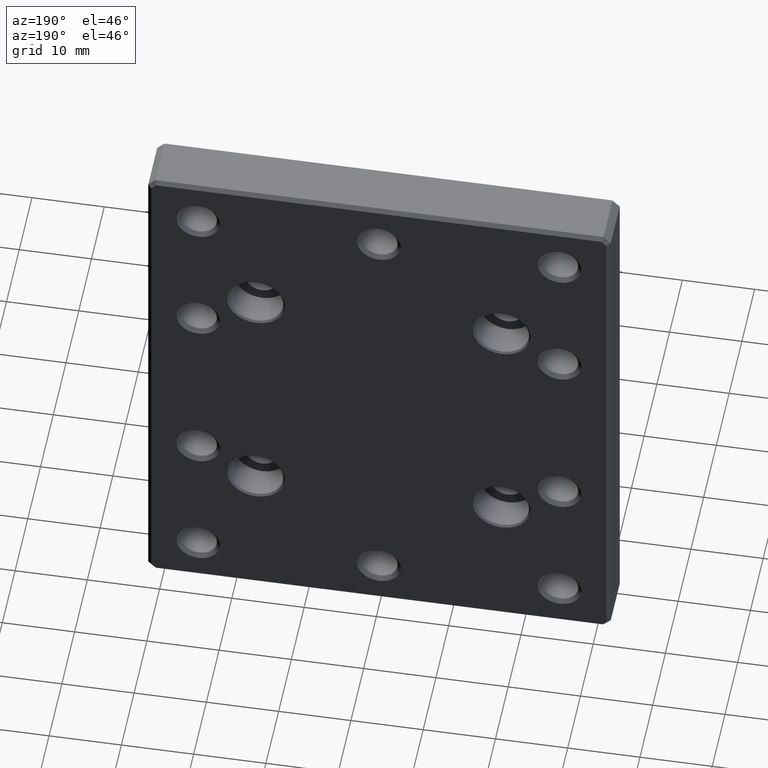
[diagram: clean part render]
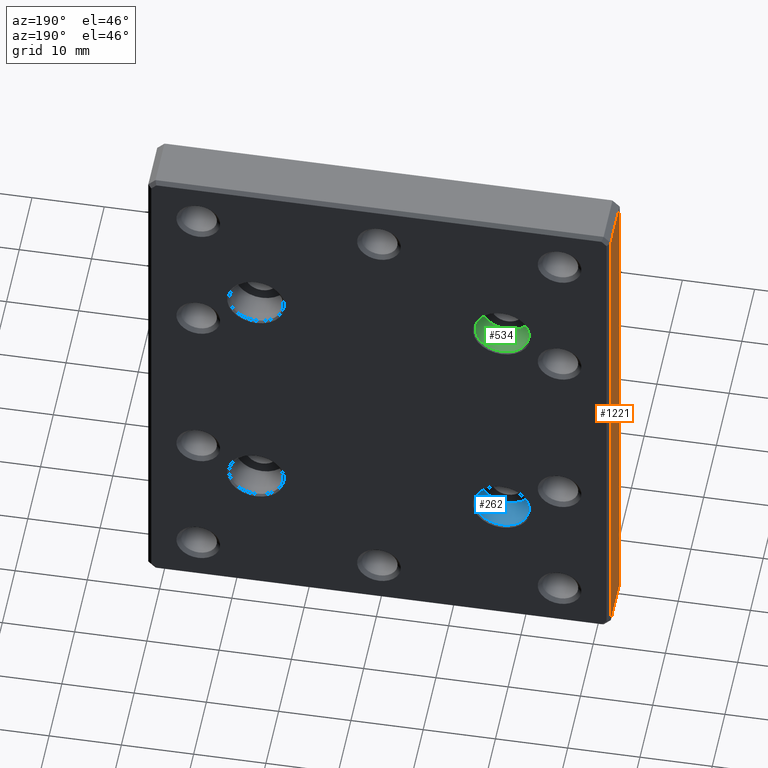
[diagram: same view with three faces highlighted in distinct colors, each labeled with its STEP entity id]
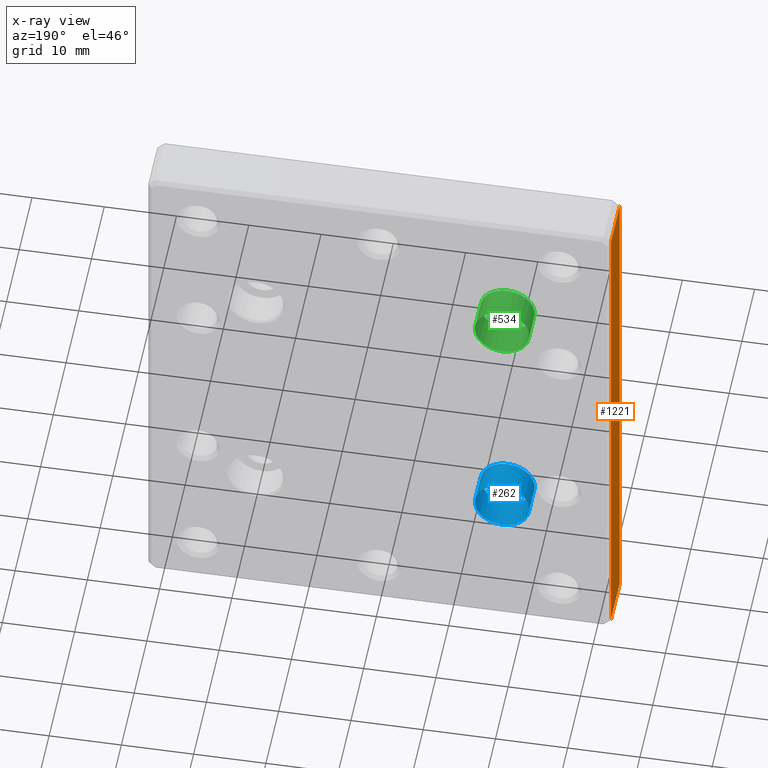
[diagram: x-ray of the same camera — body ghosted, the three highlighted faces saturated]
A machine part, auxiliary view with three faces highlighted in distinct colors.
The next image is the same camera in x-ray (body ghosted, the three faces saturated) — at least one of them is partly hidden behind the body in this view.
Their STEP definitions:

[orange] entity #1221 — the highlighted planar face has unit normal (1, 0, -0).
#29 = CARTESIAN_POINT ( 'NONE',  ( -32.00000000000001421, 8.000000000000000000, -38.00000000000000711 ) ) ;
#61 = LINE ( 'NONE', #1141, #453 ) ;
#62 = CARTESIAN_POINT ( 'NONE',  ( -32.00000000000000711, 0.5000000000000004441, 36.99999999999997868 ) ) ;
#74 = VERTEX_POINT ( 'NONE', #1002 ) ;
#133 = VERTEX_POINT ( 'NONE', #62 ) ;
#180 = CARTESIAN_POINT ( 'NONE',  ( -32.00000000000001421, 0.5000000000000004441, -38.00000000000000711 ) ) ;
#206 = ORIENTED_EDGE ( 'NONE', *, *, #1531, .T. ) ;
#228 = CARTESIAN_POINT ( 'NONE',  ( -32.00000000000000711, 8.000000000000000000, 36.99999999999997868 ) ) ;
#273 = PLANE ( 'NONE',  #1305 ) ;
#453 = VECTOR ( 'NONE', #1232, 1000.000000000000000 ) ;
#542 = DIRECTION ( 'NONE',  ( 1.000000000000000000, 0.000000000000000000, -9.130123557772669567E-17 ) ) ;
#552 = VECTOR ( 'NONE', #1161, 1000.000000000000000 ) ;
#586 = ORIENTED_EDGE ( 'NONE', *, *, #1467, .T. ) ;
#594 = VERTEX_POINT ( 'NONE', #858 ) ;
#645 = EDGE_CURVE ( 'NONE', #594, #74, #61, .T. ) ;
#696 = DIRECTION ( 'NONE',  ( -9.130123557772669567E-17, 0.000000000000000000, -1.000000000000000000 ) ) ;
#858 = CARTESIAN_POINT ( 'NONE',  ( -32.00000000000001421, 7.499999999999971578, -37.00000000000000711 ) ) ;
#893 = DIRECTION ( 'NONE',  ( -9.130123557772669567E-17, 0.000000000000000000, -1.000000000000000000 ) ) ;
#900 = LINE ( 'NONE', #228, #552 ) ;
#904 = VECTOR ( 'NONE', #893, 1000.000000000000000 ) ;
#905 = EDGE_CURVE ( 'NONE', #74, #133, #1348, .T. ) ;
#922 = FACE_OUTER_BOUND ( 'NONE', #1581, .T. ) ;
#979 = ORIENTED_EDGE ( 'NONE', *, *, #905, .T. ) ;
#1002 = CARTESIAN_POINT ( 'NONE',  ( -32.00000000000001421, 0.5000000000000004441, -37.00000000000000711 ) ) ;
#1094 = CARTESIAN_POINT ( 'NONE',  ( -32.00000000000000711, 7.499999999999971578, 36.99999999999997868 ) ) ;
#1141 = CARTESIAN_POINT ( 'NONE',  ( -32.00000000000001421, 8.000000000000000000, -37.00000000000000711 ) ) ;
#1146 = CARTESIAN_POINT ( 'NONE',  ( -32.00000000000001421, 7.499999999999971578, -37.00000000000000711 ) ) ;
#1161 = DIRECTION ( 'NONE',  ( 0.000000000000000000, 1.000000000000000000, 0.000000000000000000 ) ) ;
#1208 = DIRECTION ( 'NONE',  ( 9.130123557772669567E-17, 0.000000000000000000, 1.000000000000000000 ) ) ;
#1221 = ADVANCED_FACE ( 'NONE', ( #922 ), #273, .F. ) ;
#1232 = DIRECTION ( 'NONE',  ( 0.000000000000000000, -1.000000000000000000, 0.000000000000000000 ) ) ;
#1284 = VERTEX_POINT ( 'NONE', #1094 ) ;
#1305 = AXIS2_PLACEMENT_3D ( 'NONE', #29, #542, #696 ) ;
#1348 = LINE ( 'NONE', #180, #1536 ) ;
#1409 = LINE ( 'NONE', #1146, #904 ) ;
#1467 = EDGE_CURVE ( 'NONE', #1284, #594, #1409, .T. ) ;
#1531 = EDGE_CURVE ( 'NONE', #133, #1284, #900, .T. ) ;
#1536 = VECTOR ( 'NONE', #1208, 1000.000000000000000 ) ;
#1581 = EDGE_LOOP ( 'NONE', ( #206, #586, #1604, #979 ) ) ;
#1604 = ORIENTED_EDGE ( 'NONE', *, *, #645, .T. ) ;

[blue] entity #262 — the highlighted cylindrical surface (bore or boss wall) has radius 3.75 mm, axis along (-0, 1, -0).
#38 = EDGE_LOOP ( 'NONE', ( #1077 ) ) ;
#75 = DIRECTION ( 'NONE',  ( -0.000000000000000000, 1.000000000000000000, -0.000000000000000000 ) ) ;
#85 = CARTESIAN_POINT ( 'NONE',  ( -17.00000000000000355, 3.400000000000000355, -17.00000000000000000 ) ) ;
#161 = DIRECTION ( 'NONE',  ( 0.000000000000000000, 0.000000000000000000, 1.000000000000000000 ) ) ;
#165 = AXIS2_PLACEMENT_3D ( 'NONE', #85, #75, #873 ) ;
#241 = VERTEX_POINT ( 'NONE', #1490 ) ;
#262 = ADVANCED_FACE ( 'NONE', ( #1429, #546 ), #280, .F. ) ;
#280 = CYLINDRICAL_SURFACE ( 'NONE', #1133, 3.750000000000013767 ) ;
#281 = CARTESIAN_POINT ( 'NONE',  ( -17.00000000000000355, 3.400000000000000355, -13.24999999999998757 ) ) ;
#288 = CIRCLE ( 'NONE', #1555, 3.750000000000013767 ) ;
#289 = DIRECTION ( 'NONE',  ( -0.000000000000000000, 1.000000000000000000, -0.000000000000000000 ) ) ;
#293 = EDGE_LOOP ( 'NONE', ( #1096 ) ) ;
#444 = EDGE_CURVE ( 'NONE', #241, #241, #288, .T. ) ;
#471 = CIRCLE ( 'NONE', #165, 3.750000000000013767 ) ;
#546 = FACE_OUTER_BOUND ( 'NONE', #38, .T. ) ;
#670 = DIRECTION ( 'NONE',  ( 0.000000000000000000, 0.000000000000000000, 1.000000000000000000 ) ) ;
#691 = DIRECTION ( 'NONE',  ( 0.000000000000000000, 1.000000000000000000, 0.000000000000000000 ) ) ;
#873 = DIRECTION ( 'NONE',  ( 0.000000000000000000, 0.000000000000000000, 1.000000000000000000 ) ) ;
#1037 = VERTEX_POINT ( 'NONE', #281 ) ;
#1077 = ORIENTED_EDGE ( 'NONE', *, *, #1569, .F. ) ;
#1096 = ORIENTED_EDGE ( 'NONE', *, *, #444, .T. ) ;
#1133 = AXIS2_PLACEMENT_3D ( 'NONE', #1205, #289, #670 ) ;
#1205 = CARTESIAN_POINT ( 'NONE',  ( -17.00000000000000355, 8.000000000000000000, -17.00000000000000000 ) ) ;
#1326 = CARTESIAN_POINT ( 'NONE',  ( -17.00000000000000355, 7.749999999999998224, -17.00000000000000000 ) ) ;
#1429 = FACE_OUTER_BOUND ( 'NONE', #293, .T. ) ;
#1490 = CARTESIAN_POINT ( 'NONE',  ( -17.00000000000000355, 7.749999999999998224, -13.24999999999998757 ) ) ;
#1555 = AXIS2_PLACEMENT_3D ( 'NONE', #1326, #691, #161 ) ;
#1569 = EDGE_CURVE ( 'NONE', #1037, #1037, #471, .T. ) ;

[green] entity #534 — the highlighted cylindrical surface (bore or boss wall) has radius 3.75 mm, axis along (-0, 1, -0).
#32 = EDGE_LOOP ( 'NONE', ( #1658 ) ) ;
#188 = EDGE_CURVE ( 'NONE', #1382, #1382, #642, .T. ) ;
#245 = AXIS2_PLACEMENT_3D ( 'NONE', #557, #1081, #933 ) ;
#385 = EDGE_LOOP ( 'NONE', ( #1407 ) ) ;
#492 = DIRECTION ( 'NONE',  ( 0.000000000000000000, 1.000000000000000000, 0.000000000000000000 ) ) ;
#534 = ADVANCED_FACE ( 'NONE', ( #1149, #1120 ), #1632, .F. ) ;
#557 = CARTESIAN_POINT ( 'NONE',  ( -16.99999999999999645, 3.400000000000000355, 17.00000000000000000 ) ) ;
#601 = CARTESIAN_POINT ( 'NONE',  ( -16.99999999999999645, 8.000000000000000000, 17.00000000000000000 ) ) ;
#630 = DIRECTION ( 'NONE',  ( 0.000000000000000000, 0.000000000000000000, 1.000000000000000000 ) ) ;
#642 = CIRCLE ( 'NONE', #647, 3.750000000000013767 ) ;
#647 = AXIS2_PLACEMENT_3D ( 'NONE', #1640, #492, #1012 ) ;
#738 = CARTESIAN_POINT ( 'NONE',  ( -16.99999999999999645, 7.749999999999998224, 20.75000000000001421 ) ) ;
#848 = VERTEX_POINT ( 'NONE', #997 ) ;
#933 = DIRECTION ( 'NONE',  ( 0.000000000000000000, 0.000000000000000000, 1.000000000000000000 ) ) ;
#997 = CARTESIAN_POINT ( 'NONE',  ( -16.99999999999999645, 3.400000000000000355, 20.75000000000001421 ) ) ;
#1003 = EDGE_CURVE ( 'NONE', #848, #848, #1544, .T. ) ;
#1012 = DIRECTION ( 'NONE',  ( 0.000000000000000000, 0.000000000000000000, 1.000000000000000000 ) ) ;
#1081 = DIRECTION ( 'NONE',  ( -0.000000000000000000, 1.000000000000000000, -0.000000000000000000 ) ) ;
#1120 = FACE_OUTER_BOUND ( 'NONE', #32, .T. ) ;
#1149 = FACE_OUTER_BOUND ( 'NONE', #385, .T. ) ;
#1382 = VERTEX_POINT ( 'NONE', #738 ) ;
#1407 = ORIENTED_EDGE ( 'NONE', *, *, #188, .T. ) ;
#1528 = DIRECTION ( 'NONE',  ( -0.000000000000000000, 1.000000000000000000, -0.000000000000000000 ) ) ;
#1535 = AXIS2_PLACEMENT_3D ( 'NONE', #601, #1528, #630 ) ;
#1544 = CIRCLE ( 'NONE', #245, 3.750000000000013767 ) ;
#1632 = CYLINDRICAL_SURFACE ( 'NONE', #1535, 3.750000000000013767 ) ;
#1640 = CARTESIAN_POINT ( 'NONE',  ( -16.99999999999999645, 7.749999999999998224, 17.00000000000000000 ) ) ;
#1658 = ORIENTED_EDGE ( 'NONE', *, *, #1003, .F. ) ;